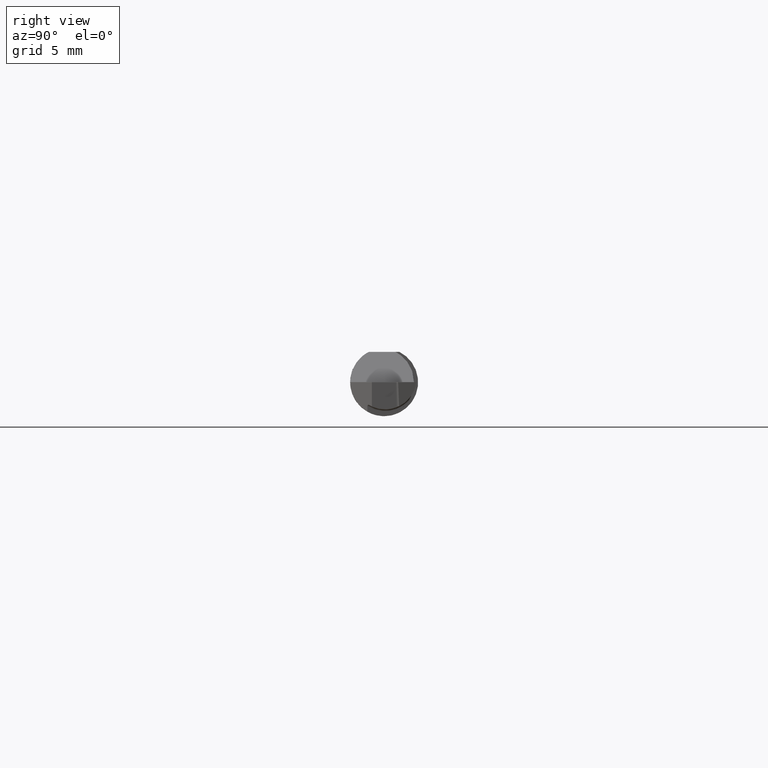
[diagram: clean part render]
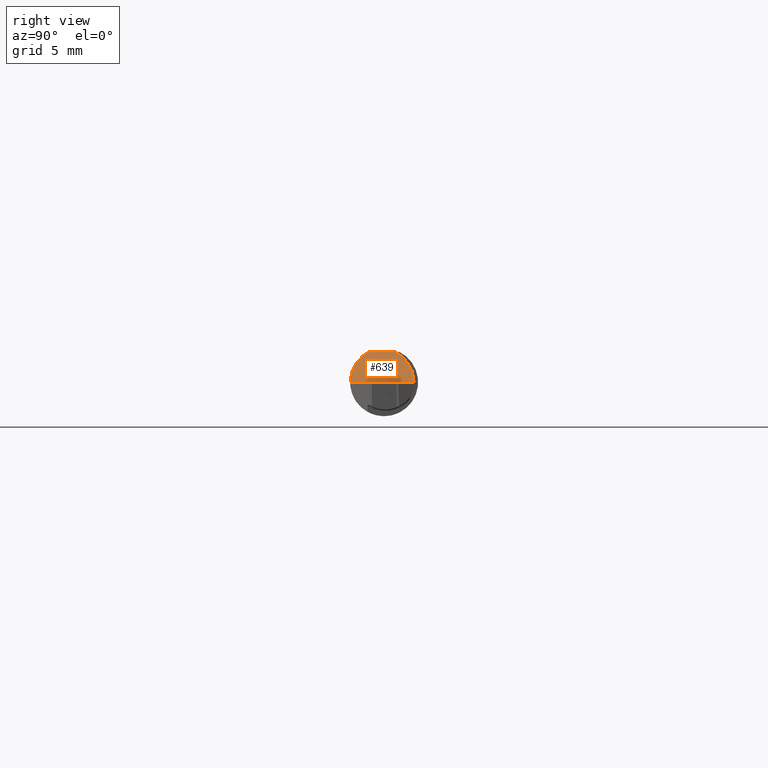
[diagram: same view with one face highlighted and labeled with its STEP entity id]
A machine part, right view. The second image highlights one B-rep face of the part: STEP entity #639.
In plain terms, the highlighted planar face has unit normal (0.7071, -0, 0.7071).
Its self-contained STEP definition (entity closure, byte-faithful):
#12 = EDGE_CURVE ( 'NONE', #623, #783, #75, .T. ) ;
#26 = CARTESIAN_POINT ( 'NONE',  ( 1.695999999999999286, 0.04209513035969836975, 0.08360000000000000764 ) ) ;
#47 = ORIENTED_EDGE ( 'NONE', *, *, #12, .F. ) ;
#75 =( BOUNDED_CURVE ( )  B_SPLINE_CURVE ( 3, ( #603, #176, #545, #553 ),
 .UNSPECIFIED., .F., .F. ) 
 B_SPLINE_CURVE_WITH_KNOTS ( ( 4, 4 ),
 ( 4.712388980384689674, 5.816717474156034129 ),
 .UNSPECIFIED. ) 
 CURVE ( )  GEOMETRIC_REPRESENTATION_ITEM ( )  RATIONAL_B_SPLINE_CURVE ( ( 1.000000000000000000, 0.9009275347591065852, 0.9009275347591065852, 1.000000000000000000 ) ) 
 REPRESENTATION_ITEM ( '' )  );
#86 = LINE ( 'NONE', #327, #525 ) ;
#92 = VERTEX_POINT ( 'NONE', #542 ) ;
#131 = EDGE_CURVE ( 'NONE', #92, #623, #86, .T. ) ;
#143 = DIRECTION ( 'NONE',  ( 0.000000000000000000, -1.000000000000000000, 0.000000000000000000 ) ) ;
#151 = VERTEX_POINT ( 'NONE', #572 ) ;
#176 = CARTESIAN_POINT ( 'NONE',  ( 1.743269953535348638, -0.09360000000000001652, 0.03633004646465035764 ) ) ;
#177 = ORIENTED_EDGE ( 'NONE', *, *, #627, .F. ) ;
#184 = CARTESIAN_POINT ( 'NONE',  ( 1.695999999999999286, 0.03097154424326387101, 0.08360000000000000764 ) ) ;
#193 = PLANE ( 'NONE',  #397 ) ;
#256 = FACE_OUTER_BOUND ( 'NONE', #267, .T. ) ;
#260 = LINE ( 'NONE', #26, #550 ) ;
#267 = EDGE_LOOP ( 'NONE', ( #645, #588, #177, #47 ) ) ;
#281 = CARTESIAN_POINT ( 'NONE',  ( 1.779599999999998516, -0.09360000000000001652, 0.000000000000000000 ) ) ;
#284 = DIRECTION ( 'NONE',  ( 0.7071067811865515695, -0.000000000000000000, 0.7071067811865434649 ) ) ;
#327 = CARTESIAN_POINT ( 'NONE',  ( 1.779599999999998516, -0.1936000000000000221, 0.000000000000000000 ) ) ;
#397 = AXIS2_PLACEMENT_3D ( 'NONE', #633, #284, #784 ) ;
#502 = DIRECTION ( 'NONE',  ( -0.000000000000000000, 1.000000000000000000, 0.000000000000000000 ) ) ;
#511 =( BOUNDED_CURVE ( )  B_SPLINE_CURVE ( 3, ( #800, #664, #737, #184 ),
 .UNSPECIFIED., .F., .T. ) 
 B_SPLINE_CURVE_WITH_KNOTS ( ( 4, 4 ),
 ( 4.712388980384689674, 5.818846015254569792 ),
 .UNSPECIFIED. ) 
 CURVE ( )  GEOMETRIC_REPRESENTATION_ITEM ( )  RATIONAL_B_SPLINE_CURVE ( ( 1.000000000000000000, 0.9005550513955334901, 0.9005550513955334901, 1.000000000000000000 ) ) 
 REPRESENTATION_ITEM ( '' )  );
#519 = EDGE_CURVE ( 'NONE', #92, #151, #511, .T. ) ;
#525 = VECTOR ( 'NONE', #143, 39.37007874015748143 ) ;
#542 = CARTESIAN_POINT ( 'NONE',  ( 1.779599999999998516, 0.08259923835978043305, 0.000000000000000000 ) ) ;
#545 = CARTESIAN_POINT ( 'NONE',  ( 1.712338867969052103, -0.07454376160376645355, 0.06726113203094705173 ) ) ;
#550 = VECTOR ( 'NONE', #502, 39.37007874015748143 ) ;
#553 = CARTESIAN_POINT ( 'NONE',  ( 1.695999999999999286, -0.04209513035969836975, 0.08360000000000000764 ) ) ;
#572 = CARTESIAN_POINT ( 'NONE',  ( 1.695999999999999286, 0.03097154424326387101, 0.08360000000000000764 ) ) ;
#588 = ORIENTED_EDGE ( 'NONE', *, *, #519, .T. ) ;
#596 = CARTESIAN_POINT ( 'NONE',  ( 1.695999999999999286, -0.04209513035969836975, 0.08360000000000000764 ) ) ;
#603 = CARTESIAN_POINT ( 'NONE',  ( 1.779599999999998516, -0.09360000000000001652, 0.000000000000000000 ) ) ;
#623 = VERTEX_POINT ( 'NONE', #281 ) ;
#627 = EDGE_CURVE ( 'NONE', #783, #151, #260, .T. ) ;
#633 = CARTESIAN_POINT ( 'NONE',  ( 1.779999999999999805, 0.1936000000000000221, -0.0004000000000014661316 ) ) ;
#639 = ADVANCED_FACE ( 'NONE', ( #256 ), #193, .T. ) ;
#645 = ORIENTED_EDGE ( 'NONE', *, *, #131, .F. ) ;
#664 = CARTESIAN_POINT ( 'NONE',  ( 1.743231059775836922, 0.08259923835978047468, 0.03636894022416205935 ) ) ;
#737 = CARTESIAN_POINT ( 'NONE',  ( 1.712287180638761397, 0.06348965550251473022, 0.06731281936123807708 ) ) ;
#783 = VERTEX_POINT ( 'NONE', #596 ) ;
#784 = DIRECTION ( 'NONE',  ( 0.7071067811865433539, 0.000000000000000000, -0.7071067811865514585 ) ) ;
#800 = CARTESIAN_POINT ( 'NONE',  ( 1.779599999999998516, 0.08259923835978043305, 0.000000000000000000 ) ) ;